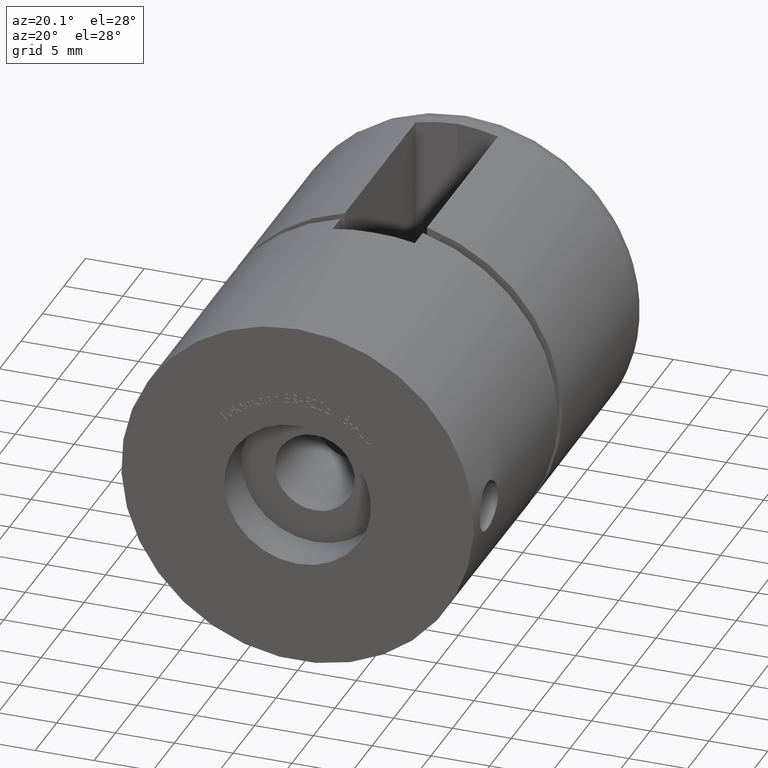
[diagram: clean part render]
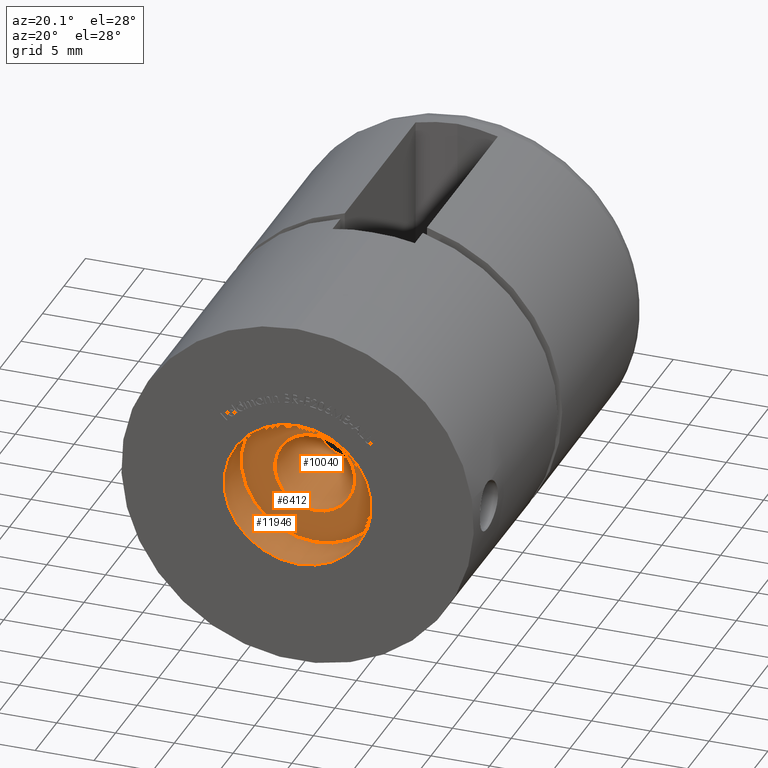
[diagram: same view with one multi-face feature highlighted, each face labeled with its STEP entity id]
A machine part, auxiliary view. The highlighted faces form ONE feature: a stepped (counterbored) hole: 2 coaxial cylindrical walls of radii 3.4 -> 6.25 mm joined by 1 annular planar shoulder face(s). The faces share edges in the B-rep.
Their STEP definitions:
[1] entity #11946 (Cylinder):
#1462 = ORIENTED_EDGE ( 'NONE', *, *, #14328, .F. ) ;
#2232 = CARTESIAN_POINT ( 'NONE',  ( 0.0000000000000000000, 4.000000000000000000, 0.0000000000000000000 ) ) ;
#2239 = VERTEX_POINT ( 'NONE', #9277 ) ;
#2858 = DIRECTION ( 'NONE',  ( 0.0000000000000000000, -1.000000000000000000, 0.0000000000000000000 ) ) ;
#3351 = EDGE_CURVE ( 'NONE', #2239, #2239, #4978, .T. ) ;
#4246 = DIRECTION ( 'NONE',  ( 0.0000000000000000000, 0.0000000000000000000, -1.000000000000000000 ) ) ;
#4260 = DIRECTION ( 'NONE',  ( 0.0000000000000000000, 0.0000000000000000000, -1.000000000000000000 ) ) ;
#4732 = EDGE_LOOP ( 'NONE', ( #8324 ) ) ;
#4978 = CIRCLE ( 'NONE', #6060, 6.250000000000000000 ) ;
#5525 = CARTESIAN_POINT ( 'NONE',  ( 0.0000000000000000000, 0.0000000000000000000, 0.0000000000000000000 ) ) ;
#6060 = AXIS2_PLACEMENT_3D ( 'NONE', #5525, #2858, #4260 ) ;
#7243 = FACE_OUTER_BOUND ( 'NONE', #9453, .T. ) ;
#7729 = VERTEX_POINT ( 'NONE', #10510 ) ;
#8324 = ORIENTED_EDGE ( 'NONE', *, *, #3351, .T. ) ;
#8394 = AXIS2_PLACEMENT_3D ( 'NONE', #2232, #10440, #10595 ) ;
#9277 = CARTESIAN_POINT ( 'NONE',  ( 0.0000000000000000000, 0.0000000000000000000, -6.250000000000000000 ) ) ;
#9453 = EDGE_LOOP ( 'NONE', ( #1462 ) ) ;
#10440 = DIRECTION ( 'NONE',  ( -0.0000000000000000000, -1.000000000000000000, -0.0000000000000000000 ) ) ;
#10510 = CARTESIAN_POINT ( 'NONE',  ( 0.0000000000000000000, 4.000000000000000000, -6.250000000000000000 ) ) ;
#10595 = DIRECTION ( 'NONE',  ( 0.0000000000000000000, 0.0000000000000000000, -1.000000000000000000 ) ) ;
#10669 = CARTESIAN_POINT ( 'NONE',  ( 0.0000000000000000000, 4.000000000000000000, 0.0000000000000000000 ) ) ;
#10857 = CIRCLE ( 'NONE', #11927, 6.250000000000000000 ) ;
#11927 = AXIS2_PLACEMENT_3D ( 'NONE', #10669, #13308, #4246 ) ;
#11946 = ADVANCED_FACE ( 'NONE', ( #7243, #15270 ), #14877, .F. ) ;
#13308 = DIRECTION ( 'NONE',  ( 0.0000000000000000000, -1.000000000000000000, 0.0000000000000000000 ) ) ;
#14328 = EDGE_CURVE ( 'NONE', #7729, #7729, #10857, .T. ) ;
#14877 = CYLINDRICAL_SURFACE ( 'NONE', #8394, 6.250000000000000000 ) ;
#15270 = FACE_OUTER_BOUND ( 'NONE', #4732, .T. ) ;
[2] entity #10040 (Cylinder):
#1058 = CARTESIAN_POINT ( 'NONE',  ( 0.0000000000000000000, 4.000000000000000000, 0.0000000000000000000 ) ) ;
#1106 = DIRECTION ( 'NONE',  ( 0.0000000000000000000, 0.0000000000000000000, 1.000000000000000000 ) ) ;
#1634 = VERTEX_POINT ( 'NONE', #10550 ) ;
#1655 = AXIS2_PLACEMENT_3D ( 'NONE', #8757, #2459, #1106 ) ;
#2459 = DIRECTION ( 'NONE',  ( 0.0000000000000000000, -1.000000000000000000, 0.0000000000000000000 ) ) ;
#4025 = CARTESIAN_POINT ( 'NONE',  ( 0.0000000000000000000, 4.000000000000000000, -3.399999999999998600 ) ) ;
#4161 = DIRECTION ( 'NONE',  ( -0.0000000000000000000, -1.000000000000000000, -0.0000000000000000000 ) ) ;
#4170 = EDGE_CURVE ( 'NONE', #14978, #14978, #14154, .T. ) ;
#4679 = ORIENTED_EDGE ( 'NONE', *, *, #4170, .T. ) ;
#4870 = EDGE_LOOP ( 'NONE', ( #7864 ) ) ;
#5547 = CARTESIAN_POINT ( 'NONE',  ( 0.0000000000000000000, 4.000000000000000000, -0.0000000000000000000 ) ) ;
#5651 = CIRCLE ( 'NONE', #1655, 3.399999999999997700 ) ;
#7864 = ORIENTED_EDGE ( 'NONE', *, *, #13320, .F. ) ;
#8032 = AXIS2_PLACEMENT_3D ( 'NONE', #5547, #4161, #8196 ) ;
#8196 = DIRECTION ( 'NONE',  ( 0.0000000000000000000, 0.0000000000000000000, -1.000000000000000000 ) ) ;
#8757 = CARTESIAN_POINT ( 'NONE',  ( 0.0000000000000000000, 13.15000000000000000, 0.0000000000000000000 ) ) ;
#10040 = ADVANCED_FACE ( 'NONE', ( #16350, #16534 ), #11669, .F. ) ;
#10550 = CARTESIAN_POINT ( 'NONE',  ( 0.0000000000000000000, 13.15000000000000000, 3.399999999999997700 ) ) ;
#11423 = DIRECTION ( 'NONE',  ( -0.0000000000000000000, -1.000000000000000000, -0.0000000000000000000 ) ) ;
#11669 = CYLINDRICAL_SURFACE ( 'NONE', #8032, 3.399999999999997700 ) ;
#12118 = EDGE_LOOP ( 'NONE', ( #4679 ) ) ;
#13320 = EDGE_CURVE ( 'NONE', #1634, #1634, #5651, .T. ) ;
#14154 = CIRCLE ( 'NONE', #15869, 3.399999999999998600 ) ;
#14978 = VERTEX_POINT ( 'NONE', #4025 ) ;
#15334 = DIRECTION ( 'NONE',  ( 0.0000000000000000000, 0.0000000000000000000, -1.000000000000000000 ) ) ;
#15869 = AXIS2_PLACEMENT_3D ( 'NONE', #1058, #11423, #15334 ) ;
#16350 = FACE_OUTER_BOUND ( 'NONE', #12118, .T. ) ;
#16534 = FACE_OUTER_BOUND ( 'NONE', #4870, .T. ) ;
[3] entity #6412 (Plane):
#1058 = CARTESIAN_POINT ( 'NONE',  ( 0.0000000000000000000, 4.000000000000000000, 0.0000000000000000000 ) ) ;
#2094 = DIRECTION ( 'NONE',  ( 0.0000000000000000000, -1.000000000000000000, 0.0000000000000000000 ) ) ;
#4025 = CARTESIAN_POINT ( 'NONE',  ( 0.0000000000000000000, 4.000000000000000000, -3.399999999999998600 ) ) ;
#4170 = EDGE_CURVE ( 'NONE', #14978, #14978, #14154, .T. ) ;
#4246 = DIRECTION ( 'NONE',  ( 0.0000000000000000000, 0.0000000000000000000, -1.000000000000000000 ) ) ;
#5507 = PLANE ( 'NONE',  #10691 ) ;
#6412 = ADVANCED_FACE ( 'NONE', ( #16108, #10626 ), #5507, .T. ) ;
#7729 = VERTEX_POINT ( 'NONE', #10510 ) ;
#10510 = CARTESIAN_POINT ( 'NONE',  ( 0.0000000000000000000, 4.000000000000000000, -6.250000000000000000 ) ) ;
#10626 = FACE_OUTER_BOUND ( 'NONE', #13985, .T. ) ;
#10669 = CARTESIAN_POINT ( 'NONE',  ( 0.0000000000000000000, 4.000000000000000000, 0.0000000000000000000 ) ) ;
#10691 = AXIS2_PLACEMENT_3D ( 'NONE', #13362, #2094, #14851 ) ;
#10857 = CIRCLE ( 'NONE', #11927, 6.250000000000000000 ) ;
#11221 = ORIENTED_EDGE ( 'NONE', *, *, #4170, .F. ) ;
#11423 = DIRECTION ( 'NONE',  ( -0.0000000000000000000, -1.000000000000000000, -0.0000000000000000000 ) ) ;
#11927 = AXIS2_PLACEMENT_3D ( 'NONE', #10669, #13308, #4246 ) ;
#13308 = DIRECTION ( 'NONE',  ( 0.0000000000000000000, -1.000000000000000000, 0.0000000000000000000 ) ) ;
#13362 = CARTESIAN_POINT ( 'NONE',  ( 0.0000000000000000000, 4.000000000000000000, 0.0000000000000000000 ) ) ;
#13449 = ORIENTED_EDGE ( 'NONE', *, *, #14328, .T. ) ;
#13985 = EDGE_LOOP ( 'NONE', ( #13449 ) ) ;
#14154 = CIRCLE ( 'NONE', #15869, 3.399999999999998600 ) ;
#14328 = EDGE_CURVE ( 'NONE', #7729, #7729, #10857, .T. ) ;
#14851 = DIRECTION ( 'NONE',  ( 0.0000000000000000000, -0.0000000000000000000, -1.000000000000000000 ) ) ;
#14978 = VERTEX_POINT ( 'NONE', #4025 ) ;
#15334 = DIRECTION ( 'NONE',  ( 0.0000000000000000000, 0.0000000000000000000, -1.000000000000000000 ) ) ;
#15469 = EDGE_LOOP ( 'NONE', ( #11221 ) ) ;
#15869 = AXIS2_PLACEMENT_3D ( 'NONE', #1058, #11423, #15334 ) ;
#16108 = FACE_BOUND ( 'NONE', #15469, .T. ) ;